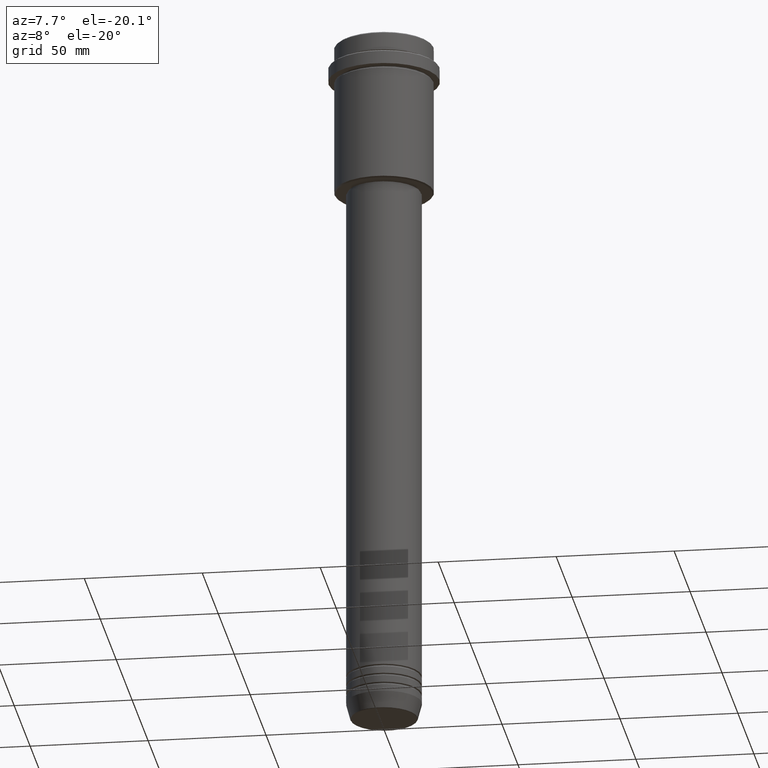
[diagram: clean part render]
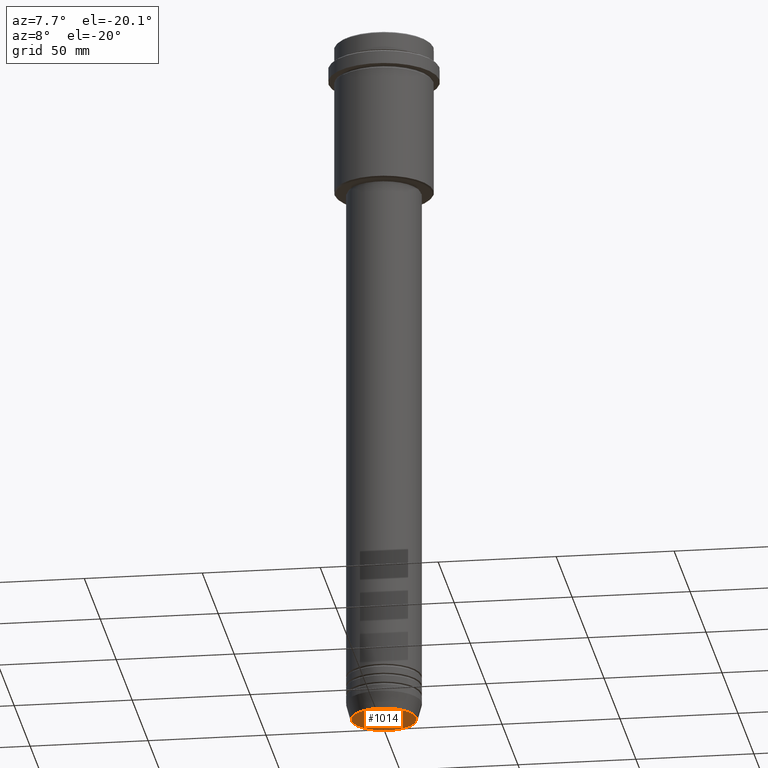
[diagram: same view with one face highlighted and labeled with its STEP entity id]
A machine part, auxiliary view. The second image highlights one B-rep face of the part: STEP entity #1014.
In plain terms, the highlighted planar face has unit normal (0, -0, 1).
Its self-contained STEP definition (entity closure, byte-faithful):
#30 = DIRECTION ( 'NONE',  ( 0.000000000000000000, -0.000000000000000000, 1.000000000000000000 ) ) ;
#100 = CIRCLE ( 'NONE', #1123, 13.74069215899265828 ) ;
#160 = ORIENTED_EDGE ( 'NONE', *, *, #608, .T. ) ;
#162 = CARTESIAN_POINT ( 'NONE',  ( 0.000000000000000000, 0.000000000000000000, -300.0000000000000000 ) ) ;
#382 = DIRECTION ( 'NONE',  ( 1.000000000000000000, 0.000000000000000000, 0.000000000000000000 ) ) ;
#405 = VERTEX_POINT ( 'NONE', #767 ) ;
#450 = CARTESIAN_POINT ( 'NONE',  ( 0.000000000000000000, 0.000000000000000000, -300.0000000000000000 ) ) ;
#477 = FACE_OUTER_BOUND ( 'NONE', #1282, .T. ) ;
#608 = EDGE_CURVE ( 'NONE', #1302, #405, #100, .T. ) ;
#652 = ORIENTED_EDGE ( 'NONE', *, *, #949, .T. ) ;
#663 = DIRECTION ( 'NONE',  ( 1.000000000000000000, 0.000000000000000000, 0.000000000000000000 ) ) ;
#767 = CARTESIAN_POINT ( 'NONE',  ( -13.74069215899265828, 1.712322416342415986E-15, -300.0000000000000000 ) ) ;
#806 = CARTESIAN_POINT ( 'NONE',  ( 0.000000000000000000, 0.000000000000000000, -300.0000000000000000 ) ) ;
#874 = DIRECTION ( 'NONE',  ( 0.000000000000000000, 0.000000000000000000, -1.000000000000000000 ) ) ;
#899 = CIRCLE ( 'NONE', #1086, 13.74069215899265828 ) ;
#949 = EDGE_CURVE ( 'NONE', #405, #1302, #899, .T. ) ;
#1014 = ADVANCED_FACE ( 'NONE', ( #477 ), #1023, .F. ) ;
#1023 = PLANE ( 'NONE',  #1138 ) ;
#1086 = AXIS2_PLACEMENT_3D ( 'NONE', #450, #874, #1292 ) ;
#1088 = CARTESIAN_POINT ( 'NONE',  ( 13.74069215899265828, 0.000000000000000000, -300.0000000000000000 ) ) ;
#1123 = AXIS2_PLACEMENT_3D ( 'NONE', #806, #1244, #382 ) ;
#1138 = AXIS2_PLACEMENT_3D ( 'NONE', #162, #30, #663 ) ;
#1244 = DIRECTION ( 'NONE',  ( 0.000000000000000000, 0.000000000000000000, -1.000000000000000000 ) ) ;
#1282 = EDGE_LOOP ( 'NONE', ( #160, #652 ) ) ;
#1292 = DIRECTION ( 'NONE',  ( 1.000000000000000000, 0.000000000000000000, 0.000000000000000000 ) ) ;
#1302 = VERTEX_POINT ( 'NONE', #1088 ) ;